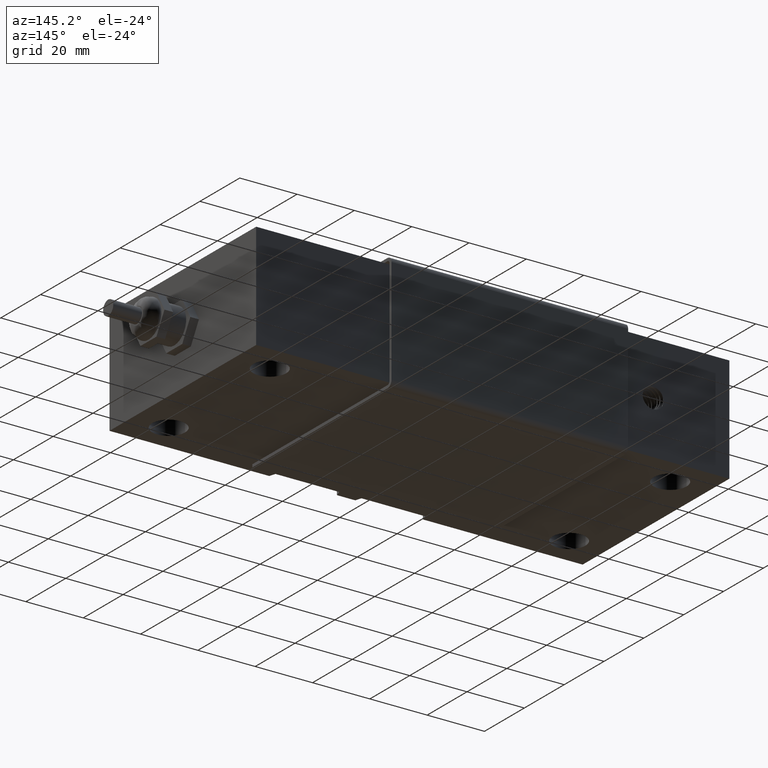
[diagram: clean part render]
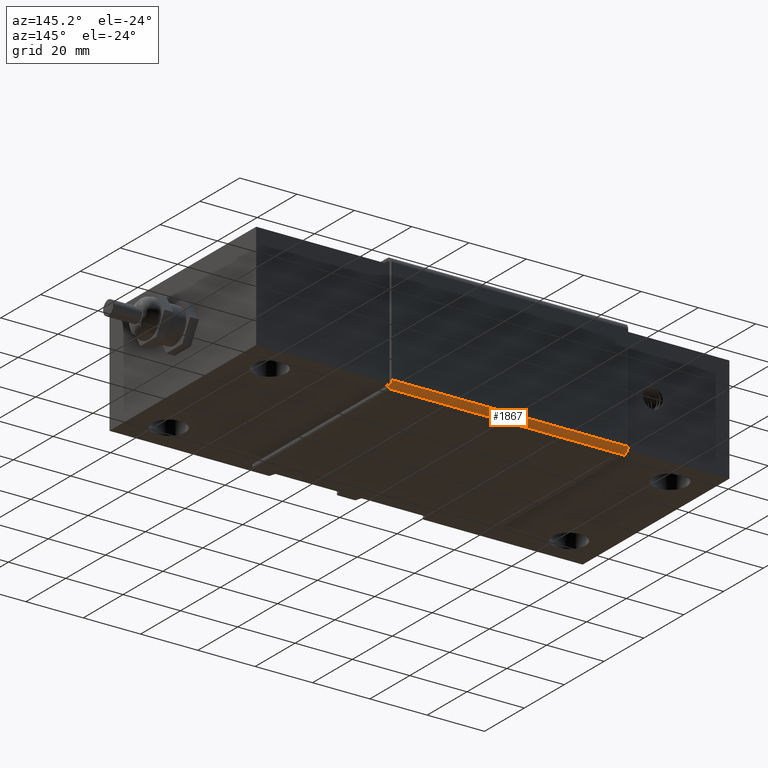
[diagram: same view with one face highlighted and labeled with its STEP entity id]
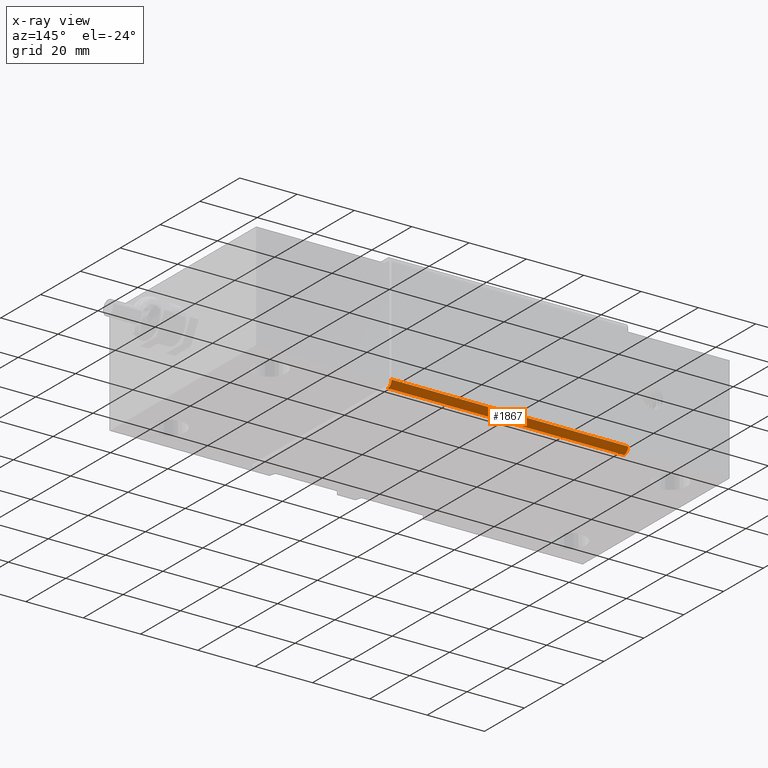
[diagram: x-ray of the same camera — body ghosted, the highlighted face saturated]
A machine part, auxiliary view. The second image highlights one B-rep face of the part: STEP entity #1867.
The next image is the same camera in x-ray: the body ghosted, the highlighted face saturated — about 0% of this face is hidden behind the body in this view.
In plain terms, the highlighted cylindrical surface (edge-blend (fillet) strip) has radius 2 mm, axis along (-1, 0, 0).
Its self-contained STEP definition (entity closure, byte-faithful):
#243=FACE_OUTER_BOUND('',#377,.T.);
#377=EDGE_LOOP('',(#1636,#1637,#1638,#1639));
#519=LINE('',#4321,#675);
#520=LINE('',#4325,#676);
#675=VECTOR('',#2486,0.393700787401575);
#676=VECTOR('',#2489,0.393700787401575);
#764=CIRCLE('',#2048,0.0787401574803151);
#765=CIRCLE('',#2049,0.0787401574803148);
#914=VERTEX_POINT('',#4319);
#915=VERTEX_POINT('',#4320);
#916=VERTEX_POINT('',#4322);
#917=VERTEX_POINT('',#4324);
#1156=EDGE_CURVE('',#914,#915,#519,.T.);
#1157=EDGE_CURVE('',#914,#916,#764,.T.);
#1158=EDGE_CURVE('',#917,#916,#520,.T.);
#1159=EDGE_CURVE('',#917,#915,#765,.T.);
#1636=ORIENTED_EDGE('',*,*,#1156,.F.);
#1637=ORIENTED_EDGE('',*,*,#1157,.T.);
#1638=ORIENTED_EDGE('',*,*,#1158,.F.);
#1639=ORIENTED_EDGE('',*,*,#1159,.T.);
#1772=CYLINDRICAL_SURFACE('',#2047,0.0787401574803127);
#1867=ADVANCED_FACE('',(#243),#1772,.T.);
#2047=AXIS2_PLACEMENT_3D('',#4318,#2484,#2485);
#2048=AXIS2_PLACEMENT_3D('',#4323,#2487,#2488);
#2049=AXIS2_PLACEMENT_3D('',#4326,#2490,#2491);
#2484=DIRECTION('center_axis',(-1.,0.,0.));
#2485=DIRECTION('ref_axis',(0.,1.,-1.74574066942157E-15));
#2486=DIRECTION('',(1.,0.,0.));
#2487=DIRECTION('center_axis',(1.,0.,0.));
#2488=DIRECTION('ref_axis',(0.,2.22044604925031E-15,-1.));
#2489=DIRECTION('',(-1.,0.,0.));
#2490=DIRECTION('center_axis',(-1.,0.,0.));
#2491=DIRECTION('ref_axis',(0.,1.,-2.22044604925032E-15));
#4318=CARTESIAN_POINT('Origin',(-0.182086614173229,1.44625984251968,-0.726259842519685));
#4319=CARTESIAN_POINT('',(-1.80708661417323,1.44625984251968,-0.805));
#4320=CARTESIAN_POINT('',(1.44291338582677,1.44625984251968,-0.805));
#4321=CARTESIAN_POINT('',(-0.182086614173229,1.44625984251968,-0.804999999999996));
#4322=CARTESIAN_POINT('',(-1.80708661417323,1.525,-0.726259842519685));
#4323=CARTESIAN_POINT('Origin',(-1.80708661417323,1.44625984251968,-0.726259842519685));
#4324=CARTESIAN_POINT('',(1.44291338582677,1.525,-0.726259842519685));
#4325=CARTESIAN_POINT('',(-0.994586614173229,1.525,-0.726259842519685));
#4326=CARTESIAN_POINT('Origin',(1.44291338582677,1.44625984251968,-0.726259842519685));